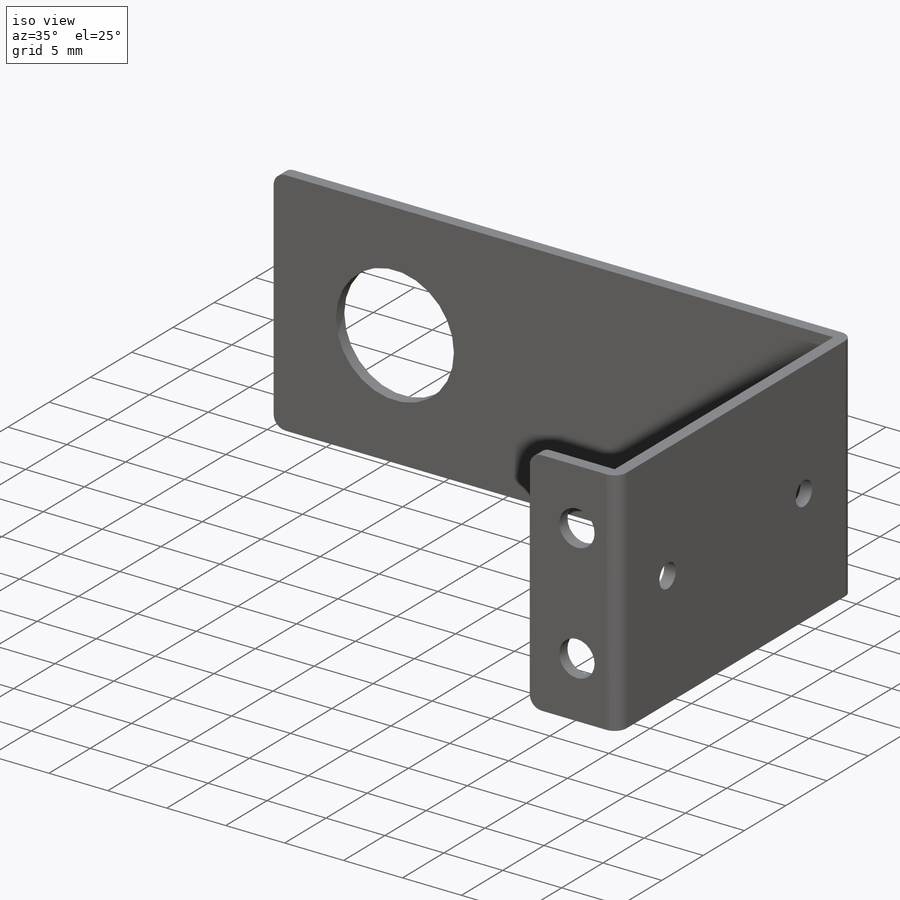
[diagram: iso view]
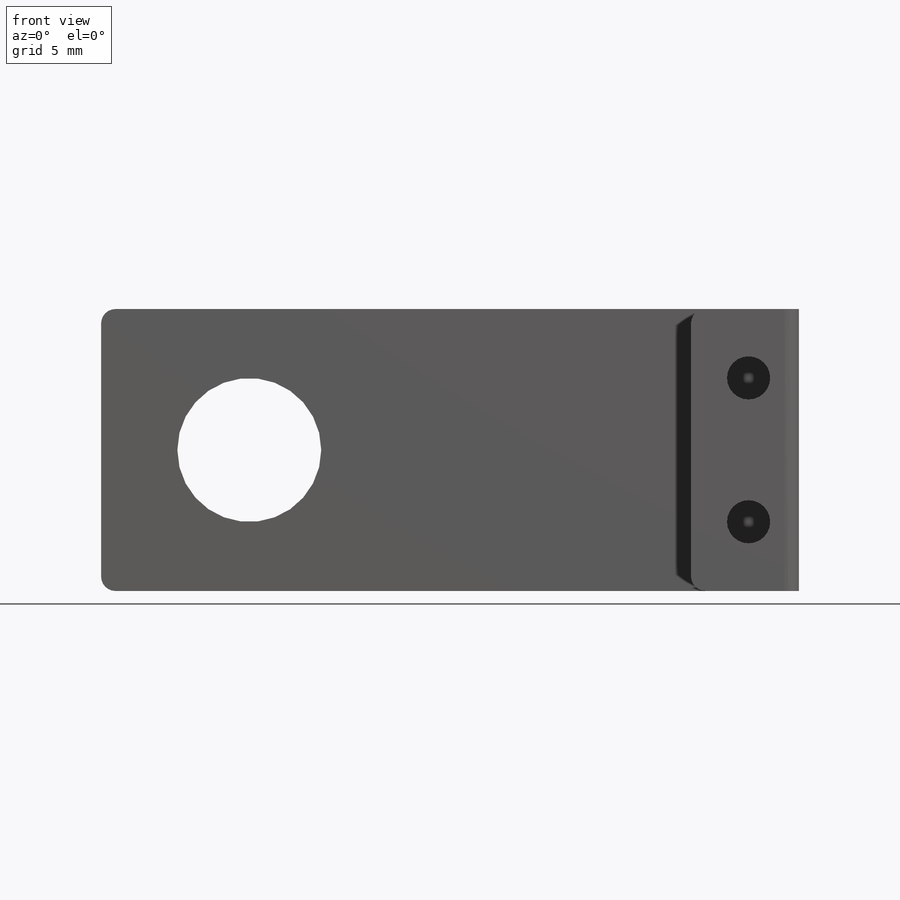
[diagram: front view]
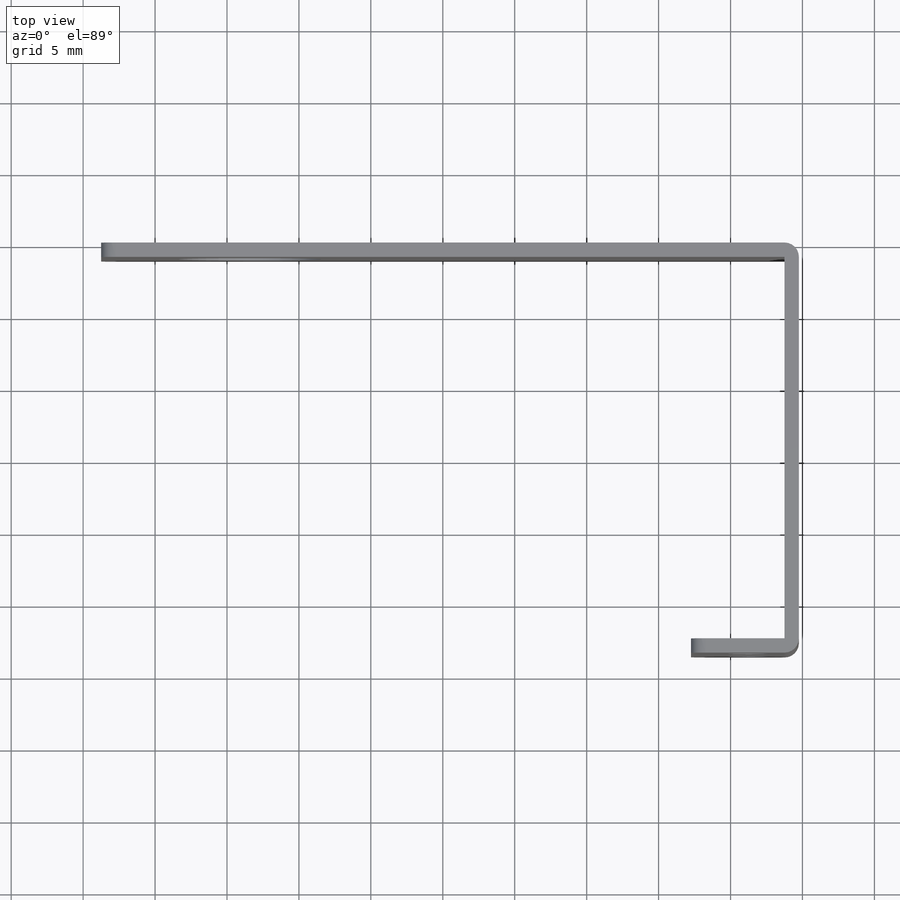
[diagram: top view]
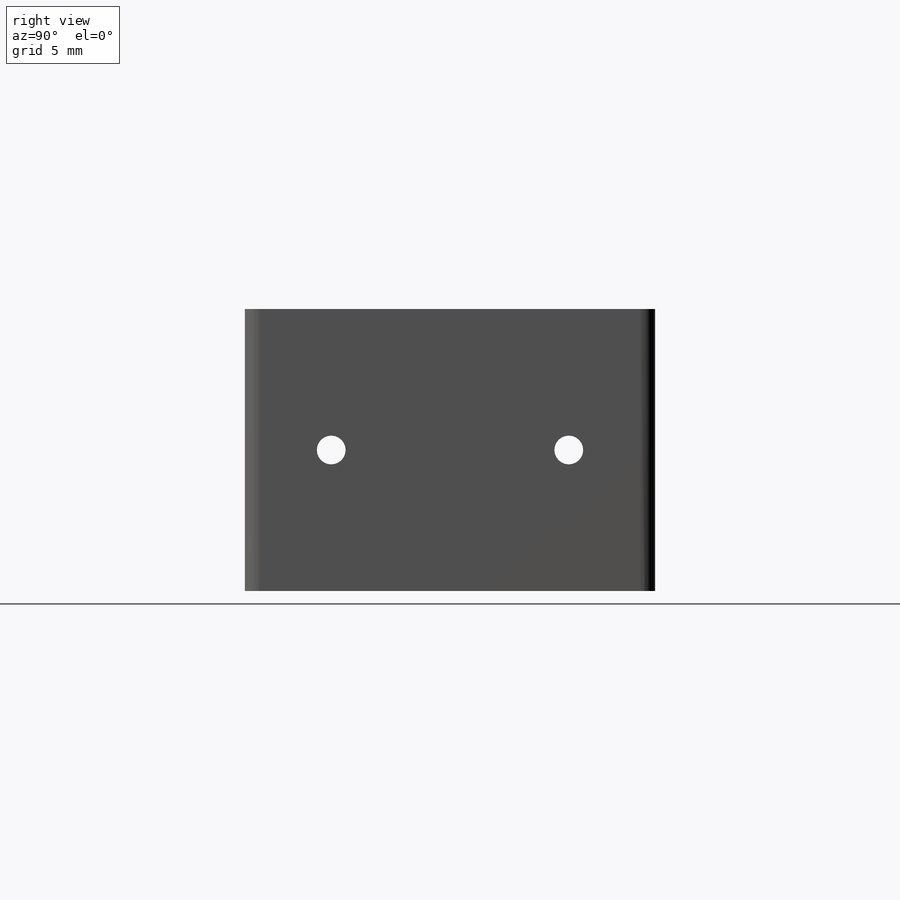
[diagram: right view]
SOLIDWORKS PART (.sldprt)
format: sldprt  version: not decoded by parser v0  size: 227,328 bytes
history: native  units: mm
features: sketch x5, extrude x3, cut_extrude x2, material x1, fillet x1 (+13 scaffold rows collapsed)
feature tree (25):
  scaffold x13  (default folders/planes/origin — collapsed)
  material  "Material <not specified>"
  sketch  "Sketch1"  dims[D5=10.0mm D1=47.5mm D2=19.6mm D3=9.8mm D4=10.3mm]
  extrude  "Boss-Extrude1"  Depth=1mm
  sketch  "Sketch2"  dims[D1=1.0mm]
  extrude  "Boss-Extrude2"  Depth=28.512mm
  sketch  "Sketch3"  dims[D1=1.0mm]
  extrude  "Boss-Extrude3"  Depth=6.5mm
  sketch  "Sketch4"  dims[c1.D1=3.0mm c1.D2=3.0mm c1.D3=3.0mm c1.D4=3.0mm c1.D5=3.0mm c2.D3=4.0mm c2.D4=5.0mm c2.D5=5.0mm]
  cut_extrude  "Cut-Extrude1"  [1 undecoded]
  sketch  "Sketch6"  dims[c1.D1=2.0mm c1.D2=2.0mm c1.D3=2.0mm c1.D4=2.0mm c2.D3=5.0mm c2.D4=5.0mm]
  cut_extrude  "Cut-Extrude2"  Depth=6.5mm
  fillet  "Fillet1"  Radius=1mm
decode coverage: 10 of 11 modeling features carry decoded parameters
note: 1 parameter value undecoded
note: suppression state not decoded; provenance and decode notes live in map.json
